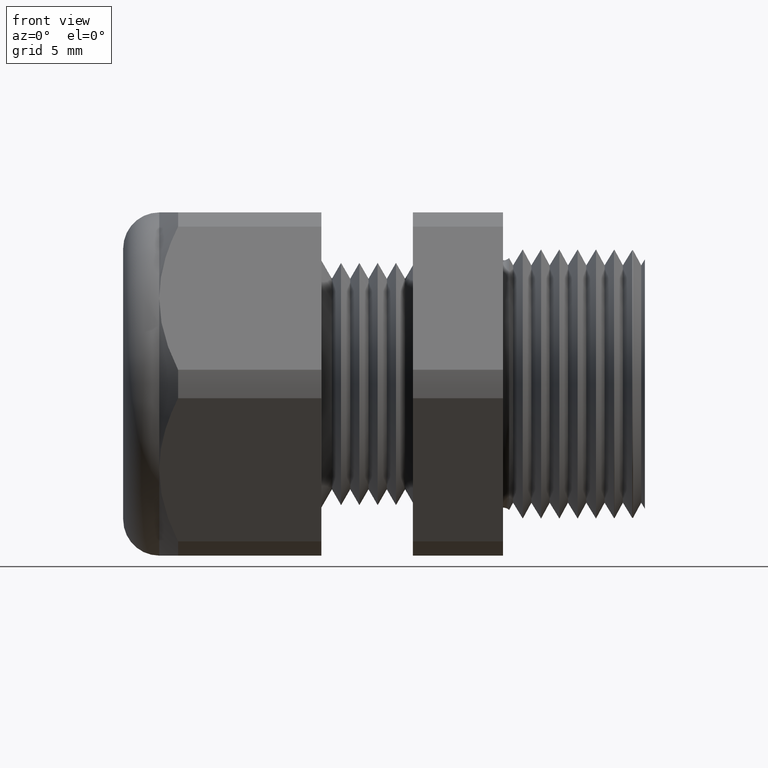
[diagram: clean part render]
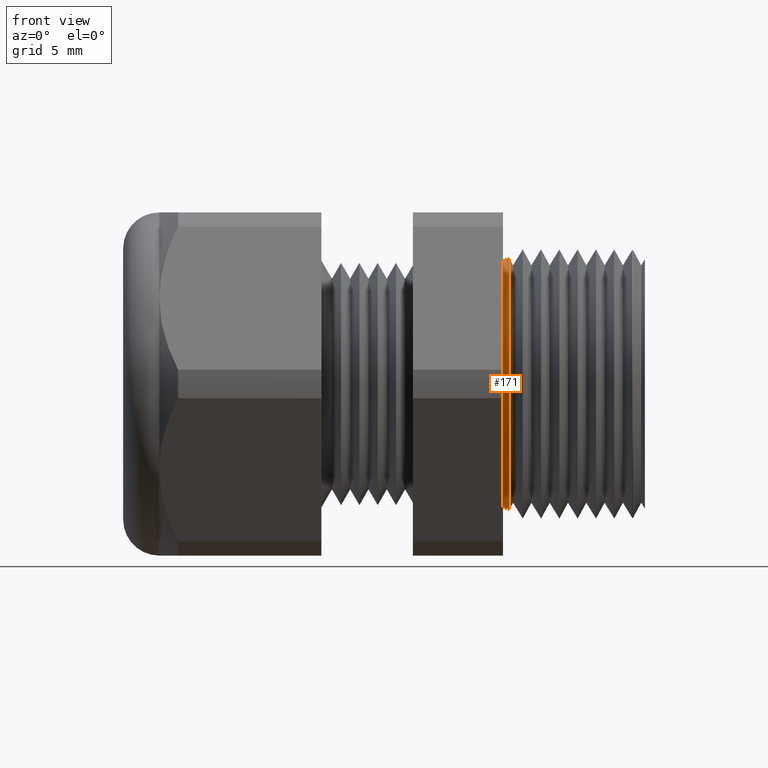
[diagram: same view with one face highlighted and labeled with its STEP entity id]
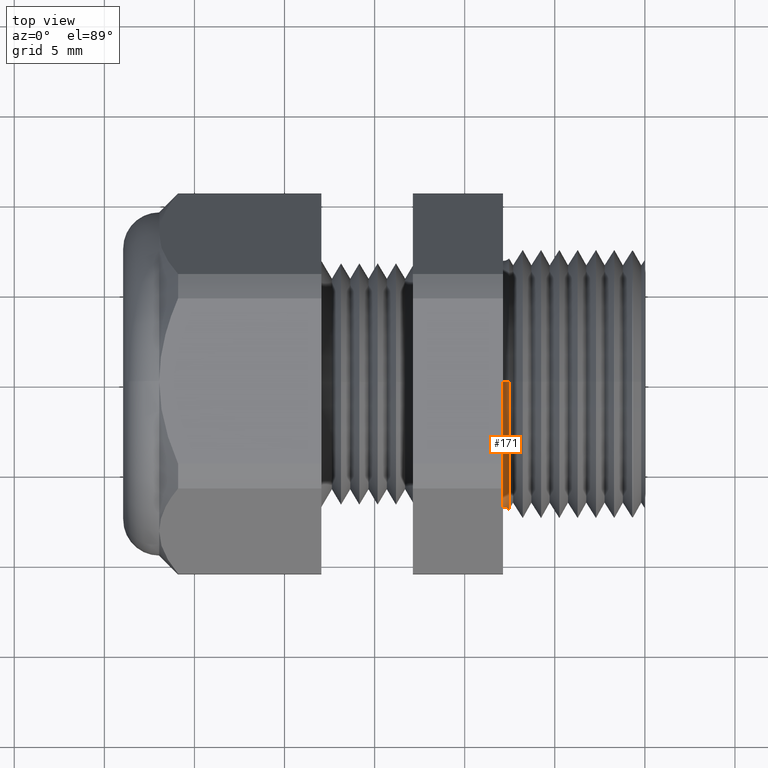
[diagram: same view with one face highlighted and labeled with its STEP entity id]
A machine part, front view. The second image highlights one B-rep face of the part: STEP entity #171.
A second angle (top view) of the same face is appended — the face is thin or edge-on in the first view.
In plain terms, the highlighted toroidal blend (fillet) surface has major radius 7.366 mm and minor (blend) radius 0.508 mm.
Its self-contained STEP definition (entity closure, byte-faithful):
#162 = EDGE_CURVE ( 'NONE', #178, #175, #2111, .T. ) ;
#165 = VERTEX_POINT ( 'NONE', #2135 ) ;
#167 = ORIENTED_EDGE ( 'NONE', *, *, #179, .F. ) ;
#169 = EDGE_CURVE ( 'NONE', #175, #165, #2134, .T. ) ;
#170 = ORIENTED_EDGE ( 'NONE', *, *, #186, .T. ) ;
#171 = ADVANCED_FACE ( 'NONE', ( #3171 ), #3182, .F. ) ;
#172 = EDGE_LOOP ( 'NONE', ( #177, #188, #167, #170 ) ) ;
#175 = VERTEX_POINT ( 'NONE', #3184 ) ;
#177 = ORIENTED_EDGE ( 'NONE', *, *, #162, .T. ) ;
#178 = VERTEX_POINT ( 'NONE', #3166 ) ;
#179 = EDGE_CURVE ( 'NONE', #194, #165, #3177, .T. ) ;
#186 = EDGE_CURVE ( 'NONE', #194, #178, #3142, .T. ) ;
#188 = ORIENTED_EDGE ( 'NONE', *, *, #169, .T. ) ;
#194 = VERTEX_POINT ( 'NONE', #3157 ) ;
#2107 = DIRECTION ( 'NONE',  ( 0.0000000000000000000, 1.224646799147354900E-016, 1.000000000000000000 ) ) ;
#2108 = DIRECTION ( 'NONE',  ( 0.0000000000000000000, 1.000000000000000000, -1.224646799147353200E-016 ) ) ;
#2109 = CARTESIAN_POINT ( 'NONE',  ( -0.3099999999999998300, 3.551475717527323800E-017, 0.2899999999999999800 ) ) ;
#2110 = AXIS2_PLACEMENT_3D ( 'NONE', #2109, #2108, #2107 ) ;
#2111 = CIRCLE ( 'NONE', #2110, 0.01999999999999999000 ) ;
#2131 = DIRECTION ( 'NONE',  ( 1.000000000000000000, 0.0000000000000000000, 0.0000000000000000000 ) ) ;
#2132 = CARTESIAN_POINT ( 'NONE',  ( -0.3099999999999998300, 0.0000000000000000000, 0.0000000000000000000 ) ) ;
#2133 = AXIS2_PLACEMENT_3D ( 'NONE', #2132, #2131, #2158 ) ;
#2134 = CIRCLE ( 'NONE', #2133, 0.2699999999999999600 ) ;
#2135 = CARTESIAN_POINT ( 'NONE',  ( -0.3099999999999998300, 0.0000000000000000000, -0.2699999999999999600 ) ) ;
#2158 = DIRECTION ( 'NONE',  ( 0.0000000000000000000, 0.0000000000000000000, -1.000000000000000000 ) ) ;
#3142 = CIRCLE ( 'NONE', #3148, 0.2752080146227876000 ) ;
#3147 = CARTESIAN_POINT ( 'NONE',  ( -0.2965390502340896600, 0.0000000000000000000, 0.0000000000000000000 ) ) ;
#3148 = AXIS2_PLACEMENT_3D ( 'NONE', #3147, #3159, #3149 ) ;
#3149 = DIRECTION ( 'NONE',  ( 0.0000000000000000000, 0.0000000000000000000, 1.000000000000000000 ) ) ;
#3157 = CARTESIAN_POINT ( 'NONE',  ( -0.2965390502340896600, 3.370326142074948100E-017, -0.2752080146227876000 ) ) ;
#3159 = DIRECTION ( 'NONE',  ( -1.000000000000000000, 0.0000000000000000000, 0.0000000000000000000 ) ) ;
#3166 = CARTESIAN_POINT ( 'NONE',  ( -0.2965390502340896600, 0.0000000000000000000, 0.2752080146227876000 ) ) ;
#3171 = FACE_OUTER_BOUND ( 'NONE', #172, .T. ) ;
#3173 = DIRECTION ( 'NONE',  ( 0.0000000000000000000, 0.0000000000000000000, -1.000000000000000000 ) ) ;
#3174 = DIRECTION ( 'NONE',  ( 0.0000000000000000000, -1.000000000000000000, 0.0000000000000000000 ) ) ;
#3175 = CARTESIAN_POINT ( 'NONE',  ( -0.3099999999999998300, 0.0000000000000000000, -0.2899999999999999800 ) ) ;
#3176 = AXIS2_PLACEMENT_3D ( 'NONE', #3175, #3174, #3173 ) ;
#3177 = CIRCLE ( 'NONE', #3176, 0.01999999999999999000 ) ;
#3178 = CARTESIAN_POINT ( 'NONE',  ( -0.3099999999999998300, 0.0000000000000000000, 0.0000000000000000000 ) ) ;
#3179 = DIRECTION ( 'NONE',  ( 0.0000000000000000000, 0.0000000000000000000, -1.000000000000000000 ) ) ;
#3180 = DIRECTION ( 'NONE',  ( 1.000000000000000000, 0.0000000000000000000, 0.0000000000000000000 ) ) ;
#3181 = AXIS2_PLACEMENT_3D ( 'NONE', #3178, #3180, #3179 ) ;
#3182 = TOROIDAL_SURFACE ( 'NONE', #3181, 0.2899999999999999800, 0.02000000000000000700 ) ;
#3184 = CARTESIAN_POINT ( 'NONE',  ( -0.3099999999999998300, 3.306546357697853700E-017, 0.2699999999999999600 ) ) ;